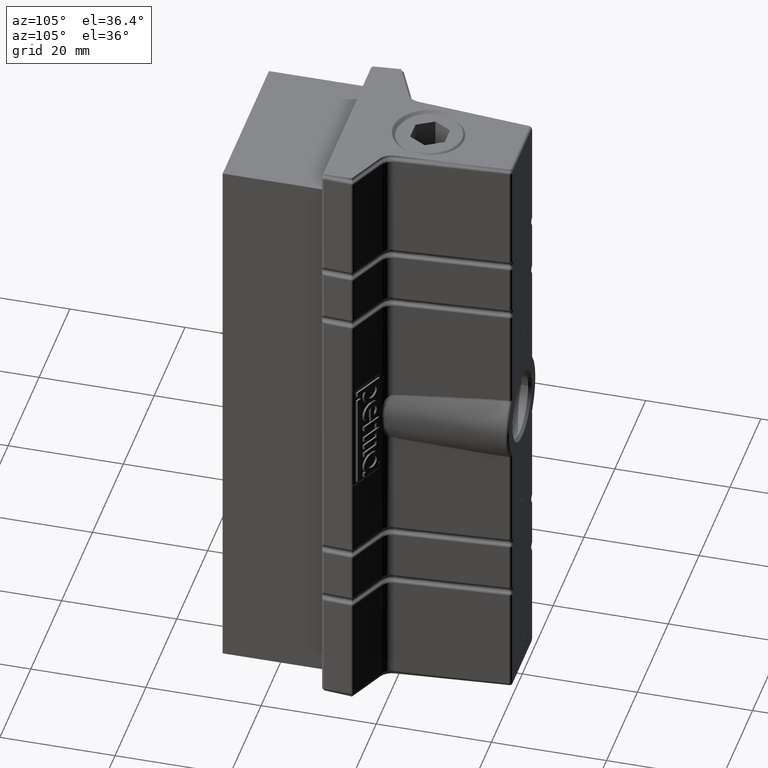
[diagram: clean part render]
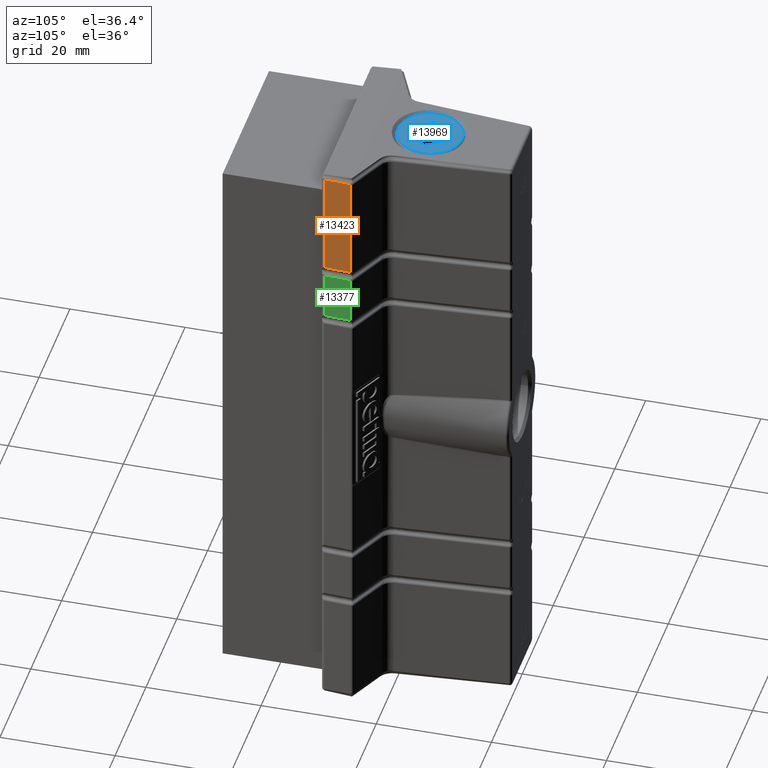
[diagram: same view with three faces highlighted in distinct colors, each labeled with its STEP entity id]
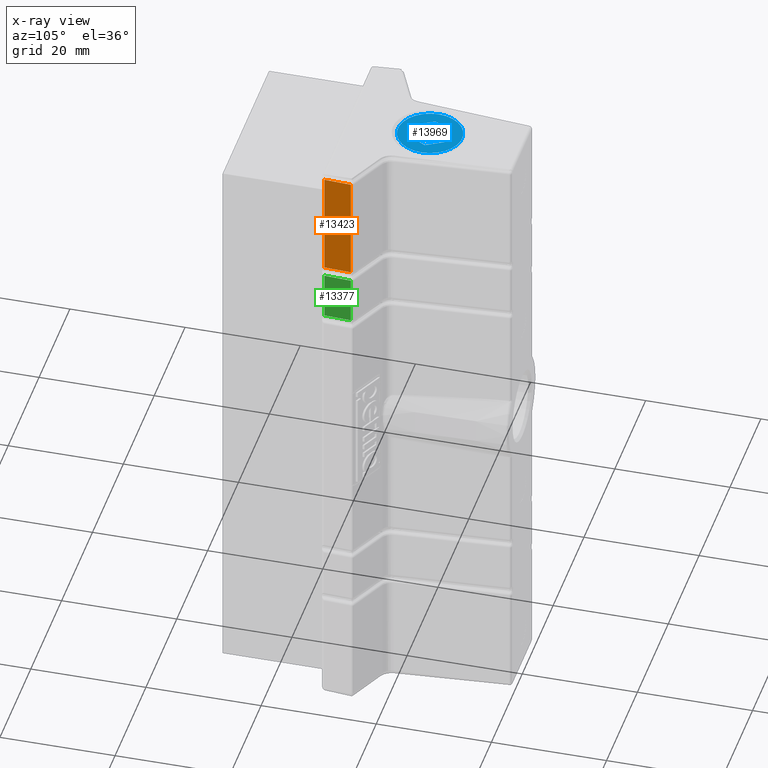
[diagram: x-ray of the same camera — body ghosted, the three highlighted faces saturated]
A machine part, auxiliary view with three faces highlighted in distinct colors.
The next image is the same camera in x-ray (body ghosted, the three faces saturated) — at least one of them is partly hidden behind the body in this view.
Their STEP definitions:

[orange] entity #13423 — the highlighted planar face has unit normal (0.999, -0.0436, 0).
#554=LINE('',#24136,#1697);
#584=LINE('',#24581,#1727);
#585=LINE('',#24585,#1728);
#586=LINE('',#24586,#1729);
#1697=VECTOR('',#16429,10.);
#1727=VECTOR('',#16575,10.);
#1728=VECTOR('',#16580,10.);
#1729=VECTOR('',#16581,10.);
#2664=PLANE('',#14636);
#3714=FACE_OUTER_BOUND('',#4596,.T.);
#4596=EDGE_LOOP('',(#10528,#10529,#10530,#10531));
#6320=VERTEX_POINT('',#24122);
#6321=VERTEX_POINT('',#24135);
#6367=VERTEX_POINT('',#24580);
#6368=VERTEX_POINT('',#24584);
#7795=EDGE_CURVE('',#6320,#6321,#554,.T.);
#7875=EDGE_CURVE('',#6321,#6367,#584,.T.);
#7877=EDGE_CURVE('',#6368,#6320,#585,.T.);
#7878=EDGE_CURVE('',#6367,#6368,#586,.T.);
#10528=ORIENTED_EDGE('',*,*,#7795,.F.);
#10529=ORIENTED_EDGE('',*,*,#7877,.F.);
#10530=ORIENTED_EDGE('',*,*,#7878,.F.);
#10531=ORIENTED_EDGE('',*,*,#7875,.F.);
#13423=ADVANCED_FACE('',(#3714),#2664,.T.);
#14636=AXIS2_PLACEMENT_3D('',#24583,#16578,#16579);
#16429=DIRECTION('',(-0.0436193873653357,-0.999048221581858,2.04849158106814E-15));
#16575=DIRECTION('',(0.,0.,1.));
#16578=DIRECTION('center_axis',(0.999048221581858,-0.0436193873653357,0.));
#16579=DIRECTION('ref_axis',(0.,0.,-1.));
#16580=DIRECTION('',(0.,0.,-1.));
#16581=DIRECTION('',(0.0436193873653357,0.999048221581858,-2.04849158106812E-15));
#24122=CARTESIAN_POINT('',(16.495206616324,-22.8335039029825,68.4955795721624));
#24135=CARTESIAN_POINT('',(16.2905107648586,-27.5218096936827,68.4955795721587));
#24136=CARTESIAN_POINT('',(16.495206616324,-22.8335039029825,68.4955795721587));
#24580=CARTESIAN_POINT('',(16.2905107648586,-27.5218096936827,86.7644204278537));
#24581=CARTESIAN_POINT('',(16.2905107648586,-27.5218096936827,30.));
#24583=CARTESIAN_POINT('Origin',(16.654391107291,-19.187579642929,-30.));
#24584=CARTESIAN_POINT('',(16.495206616324,-22.8335039029825,86.7644204278458));
#24585=CARTESIAN_POINT('',(16.495206616324,-22.8335039029825,33.7505));
#24586=CARTESIAN_POINT('',(16.495206616324,-22.8335039029827,86.7644204278537));

[blue] entity #13969 — the highlighted planar face has unit normal (0, -0, 1).
#165=FACE_BOUND('',#5169,.T.);
#1460=LINE('',#30539,#2603);
#1463=LINE('',#30544,#2606);
#1465=LINE('',#30548,#2608);
#1467=LINE('',#30552,#2610);
#1469=LINE('',#30556,#2612);
#1471=LINE('',#30559,#2614);
#2603=VECTOR('',#18555,10.);
#2606=VECTOR('',#18560,10.);
#2608=VECTOR('',#18564,10.);
#2610=VECTOR('',#18568,10.);
#2612=VECTOR('',#18572,10.);
#2614=VECTOR('',#18576,10.);
#3012=PLANE('',#15202);
#4260=FACE_OUTER_BOUND('',#5168,.T.);
#5168=EDGE_LOOP('',(#13102));
#5169=EDGE_LOOP('',(#13103,#13104,#13105,#13106,#13107,#13108));
#5869=CIRCLE('',#15201,5.58);
#7061=VERTEX_POINT('',#30537);
#7062=VERTEX_POINT('',#30538);
#7063=VERTEX_POINT('',#30543);
#7064=VERTEX_POINT('',#30547);
#7065=VERTEX_POINT('',#30551);
#7066=VERTEX_POINT('',#30555);
#7072=VERTEX_POINT('',#30576);
#9064=EDGE_CURVE('',#7061,#7062,#1460,.T.);
#9067=EDGE_CURVE('',#7063,#7061,#1463,.T.);
#9069=EDGE_CURVE('',#7064,#7063,#1465,.T.);
#9071=EDGE_CURVE('',#7065,#7064,#1467,.T.);
#9073=EDGE_CURVE('',#7066,#7065,#1469,.T.);
#9075=EDGE_CURVE('',#7062,#7066,#1471,.T.);
#9084=EDGE_CURVE('',#7072,#7072,#5869,.T.);
#13102=ORIENTED_EDGE('',*,*,#9084,.F.);
#13103=ORIENTED_EDGE('',*,*,#9064,.T.);
#13104=ORIENTED_EDGE('',*,*,#9075,.T.);
#13105=ORIENTED_EDGE('',*,*,#9073,.T.);
#13106=ORIENTED_EDGE('',*,*,#9071,.T.);
#13107=ORIENTED_EDGE('',*,*,#9069,.T.);
#13108=ORIENTED_EDGE('',*,*,#9067,.T.);
#13969=ADVANCED_FACE('',(#4260,#165),#3012,.T.);
#15201=AXIS2_PLACEMENT_3D('',#30578,#18598,#18599);
#15202=AXIS2_PLACEMENT_3D('',#30579,#18600,#18601);
#18555=DIRECTION('',(0.,0.866025403784438,0.500000000000001));
#18560=DIRECTION('',(0.,-6.40987562127855E-16,1.));
#18564=DIRECTION('',(0.,-0.866025403784439,0.499999999999999));
#18568=DIRECTION('',(0.,-0.866025403784438,-0.500000000000001));
#18572=DIRECTION('',(0.,1.12172823372375E-15,-1.));
#18576=DIRECTION('',(0.,0.866025403784439,-0.499999999999999));
#18598=DIRECTION('center_axis',(-1.,0.,0.));
#18599=DIRECTION('ref_axis',(0.,0.,-1.));
#18600=DIRECTION('center_axis',(1.,0.,0.));
#18601=DIRECTION('ref_axis',(0.,0.,-1.));
#30537=CARTESIAN_POINT('',(10.,-3.,1.73205080756888));
#30538=CARTESIAN_POINT('',(10.,-2.9812334278413E-15,3.46410161513776));
#30539=CARTESIAN_POINT('',(10.,-0.825388210774599,2.9875635094611));
#30543=CARTESIAN_POINT('',(10.,-3.,-1.73205080756888));
#30544=CARTESIAN_POINT('',(10.,-3.,2.42397459621556));
#30547=CARTESIAN_POINT('',(10.,1.80162146417707E-15,-3.46410161513775));
#30548=CARTESIAN_POINT('',(10.,-2.1746117892254,-2.20858891324554));
#30551=CARTESIAN_POINT('',(10.,3.,-1.73205080756887));
#30552=CARTESIAN_POINT('',(10.,3.6746117892254,-1.34256350946109));
#30555=CARTESIAN_POINT('',(10.,3.,1.73205080756888));
#30556=CARTESIAN_POINT('',(10.,3.,4.15602540378444));
#30559=CARTESIAN_POINT('',(10.,-0.674611789225402,3.85358891324553));
#30576=CARTESIAN_POINT('',(10.,6.83352913924223E-16,5.58));
#30578=CARTESIAN_POINT('Origin',(10.,0.,0.));
#30579=CARTESIAN_POINT('Origin',(10.,0.,6.58));

[green] entity #13377 — the highlighted planar face has unit normal (0.999, -0.0436, 0).
#546=LINE('',#23871,#1689);
#547=LINE('',#23875,#1690);
#548=LINE('',#23877,#1691);
#549=LINE('',#23878,#1692);
#1689=VECTOR('',#16377,10.);
#1690=VECTOR('',#16382,10.);
#1691=VECTOR('',#16383,10.);
#1692=VECTOR('',#16384,10.);
#2655=PLANE('',#14556);
#3668=FACE_OUTER_BOUND('',#4549,.T.);
#4549=EDGE_LOOP('',(#10291,#10292,#10293,#10294));
#6303=VERTEX_POINT('',#23857);
#6304=VERTEX_POINT('',#23870);
#6305=VERTEX_POINT('',#23874);
#6306=VERTEX_POINT('',#23876);
#7764=EDGE_CURVE('',#6303,#6304,#546,.T.);
#7766=EDGE_CURVE('',#6305,#6303,#547,.T.);
#7767=EDGE_CURVE('',#6306,#6305,#548,.T.);
#7768=EDGE_CURVE('',#6304,#6306,#549,.T.);
#10291=ORIENTED_EDGE('',*,*,#7764,.F.);
#10292=ORIENTED_EDGE('',*,*,#7766,.F.);
#10293=ORIENTED_EDGE('',*,*,#7767,.F.);
#10294=ORIENTED_EDGE('',*,*,#7768,.F.);
#13377=ADVANCED_FACE('',(#3668),#2655,.T.);
#14556=AXIS2_PLACEMENT_3D('',#23873,#16380,#16381);
#16377=DIRECTION('',(-0.0436193873653357,-0.999048221581858,2.04849158106814E-15));
#16380=DIRECTION('center_axis',(0.999048221581858,-0.0436193873653357,0.));
#16381=DIRECTION('ref_axis',(0.,0.,-1.));
#16382=DIRECTION('',(0.,0.,-1.));
#16383=DIRECTION('',(0.0436193873653357,0.999048221581858,-2.04849158106814E-15));
#16384=DIRECTION('',(0.,0.,1.));
#23857=CARTESIAN_POINT('',(16.495206616324,-22.8335039029825,58.4955795721623));
#23870=CARTESIAN_POINT('',(16.2905107648586,-27.5218096936827,58.4955795721587));
#23871=CARTESIAN_POINT('',(16.495206616324,-22.8335039029825,58.4955795721587));
#23873=CARTESIAN_POINT('Origin',(16.654391107291,-19.187579642929,-30.));
#23874=CARTESIAN_POINT('',(16.495206616324,-22.8335039029825,66.7644204278457));
#23875=CARTESIAN_POINT('',(16.495206616324,-22.8335039029825,33.7505));
#23876=CARTESIAN_POINT('',(16.2905107648586,-27.5218096936827,66.7644204278494));
#23877=CARTESIAN_POINT('',(16.495206616324,-22.8335039029825,66.7644204278494));
#23878=CARTESIAN_POINT('',(16.2905107648586,-27.5218096936827,30.));